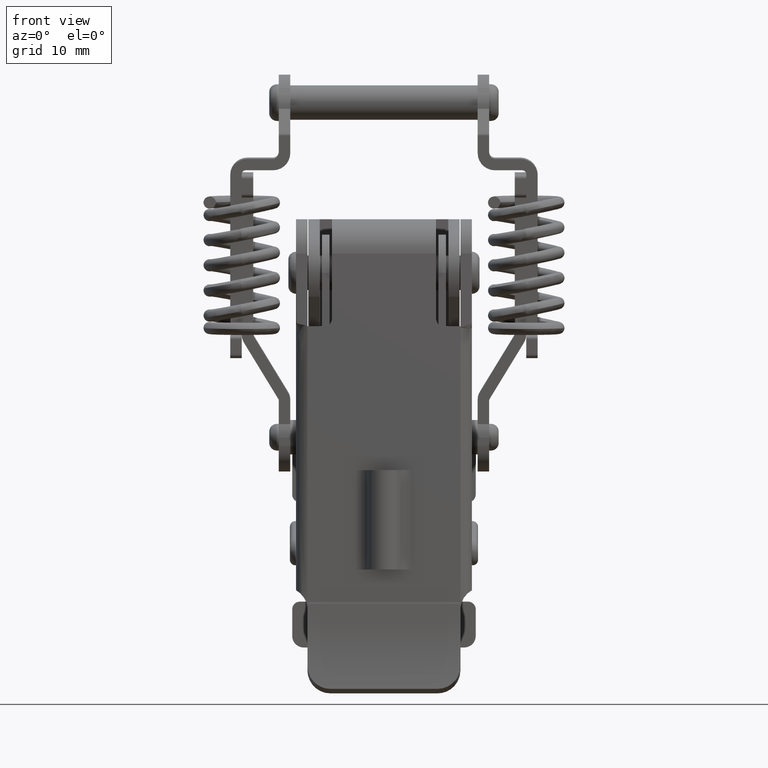
[diagram: clean part render]
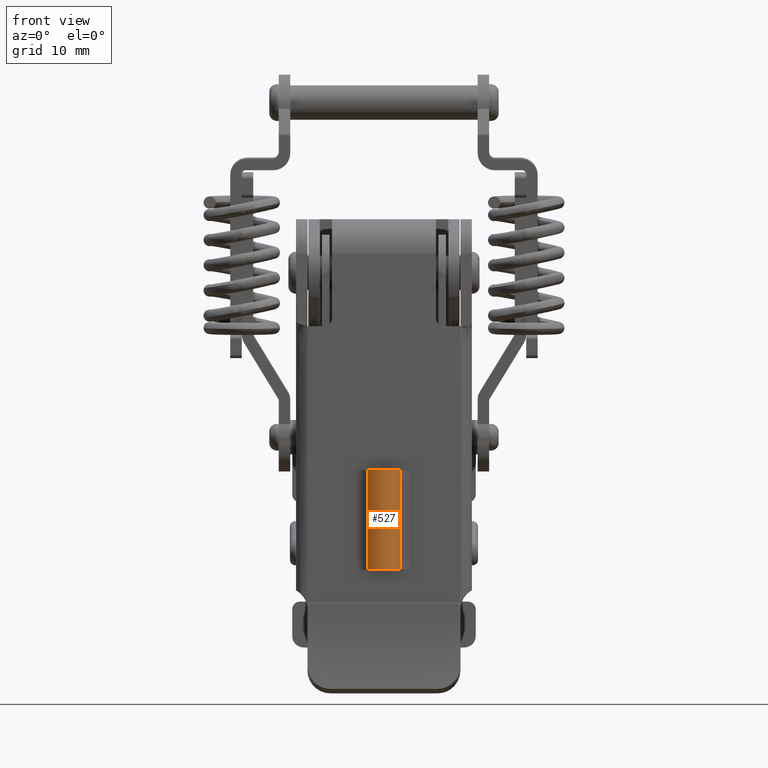
[diagram: same view with one face highlighted and labeled with its STEP entity id]
A machine part, front view. The second image highlights one B-rep face of the part: STEP entity #527.
In plain terms, the highlighted cylindrical surface (edge-blend (fillet) strip) has radius 2.2625 mm, axis along (0, 0, 1).
Its self-contained STEP definition (entity closure, byte-faithful):
#527=ADVANCED_FACE('',(#3292),#3291,.T.);
#3291=CYLINDRICAL_SURFACE('',#6375,2.26250000000E+00);
#3292=FACE_OUTER_BOUND('',#6376,.T.);
#6372=CARTESIAN_POINT('',(1.13686837722E-13,-2.37500000000E-01,9.82699992875E+02));
#6373=DIRECTION('',(-0.00000000000E+00,-0.00000000000E+00,1.00000000000E+00));
#6374=DIRECTION('',(1.00000000000E+00,-0.00000000000E+00,-0.00000000000E+00));
#6375=AXIS2_PLACEMENT_3D('',#6372,#6373,#6374);
#6376=EDGE_LOOP('',(#11126,#11127,#11128,#11129));
#11126=ORIENTED_EDGE('',*,*,#12674,.F.);
#11127=ORIENTED_EDGE('',*,*,#12655,.F.);
#11128=ORIENTED_EDGE('',*,*,#12675,.T.);
#11129=ORIENTED_EDGE('',*,*,#12671,.T.);
#12655=EDGE_CURVE('',#18011,#17996,#18018,.T.);
#12671=EDGE_CURVE('',#18128,#18121,#18129,.T.);
#12674=EDGE_CURVE('',#17996,#18121,#18148,.T.);
#12675=EDGE_CURVE('',#18011,#18128,#18154,.T.);
#17996=VERTEX_POINT('',#23405);
#18011=VERTEX_POINT('',#23415);
#18018=LINE('',#23420,#23421);
#18121=VERTEX_POINT('',#23488);
#18128=VERTEX_POINT('',#23493);
#18129=LINE('',#23494,#23495);
#18148=CIRCLE('',#23508,2.26250000000E+00);
#18154=CIRCLE('',#23512,2.26250000000E+00);
#23405=CARTESIAN_POINT('',(2.13132714706E+00,-9.96677740864E-01,-1.73000071250E+01));
#23415=CARTESIAN_POINT('',(2.13132714706E+00,-9.96677740864E-01,-4.30000712500E+00));
#23420=CARTESIAN_POINT('',(2.13132714706E+00,-9.96677740864E-01,-4.30000712500E+00));
#23421=VECTOR('',#23422,1.30000000000E+01);
#23422=DIRECTION('',(0.00000000000E+00,0.00000000000E+00,-1.00000000000E+00));
#23488=CARTESIAN_POINT('',(-2.13132714706E+00,-9.96677740864E-01,-1.73000071250E+01));
#23493=CARTESIAN_POINT('',(-2.13132714706E+00,-9.96677740864E-01,-4.30000712500E+00));
#23494=CARTESIAN_POINT('',(-2.13132714706E+00,-9.96677740864E-01,-4.30000712500E+00));
#23495=VECTOR('',#23496,1.30000000000E+01);
#23496=DIRECTION('',(0.00000000000E+00,0.00000000000E+00,-1.00000000000E+00));
#23505=CARTESIAN_POINT('',(1.13686837722E-13,-2.37500000000E-01,-1.73000071250E+01));
#23506=DIRECTION('',(0.00000000000E+00,0.00000000000E+00,-1.00000000000E+00));
#23507=DIRECTION('',(1.00000000000E+00,-0.00000000000E+00,-0.00000000000E+00));
#23508=AXIS2_PLACEMENT_3D('',#23505,#23506,#23507);
#23509=CARTESIAN_POINT('',(1.13686837722E-13,-2.37500000000E-01,-4.30000712500E+00));
#23510=DIRECTION('',(0.00000000000E+00,0.00000000000E+00,-1.00000000000E+00));
#23511=DIRECTION('',(1.00000000000E+00,-0.00000000000E+00,-0.00000000000E+00));
#23512=AXIS2_PLACEMENT_3D('',#23509,#23510,#23511);